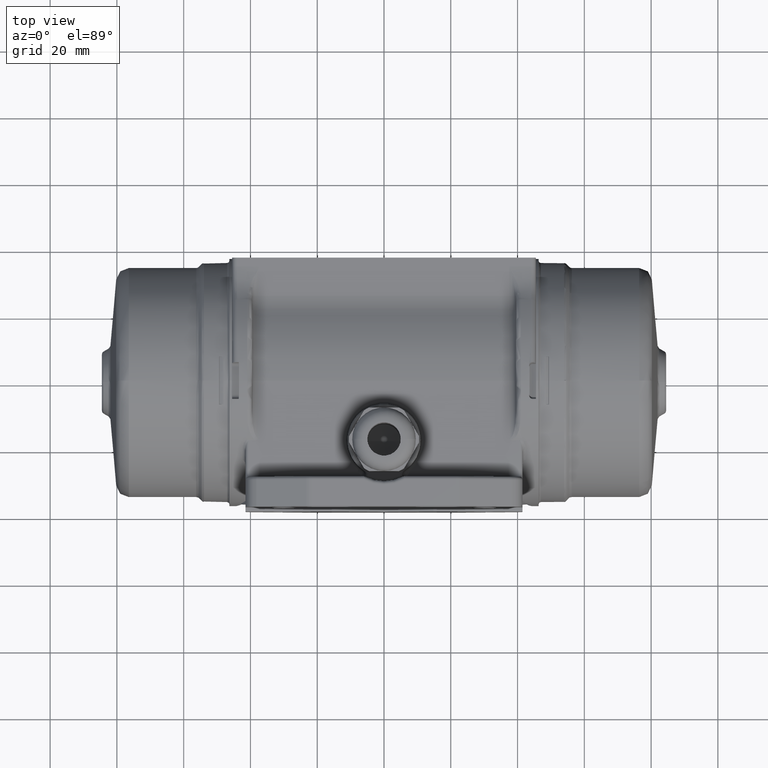
[diagram: clean part render]
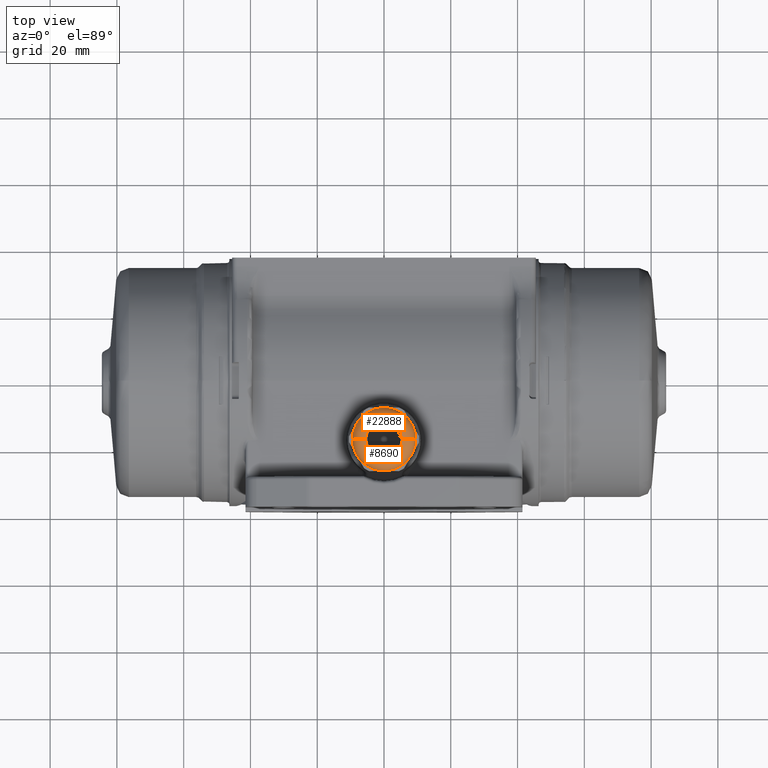
[diagram: same view with one multi-face feature highlighted, each face labeled with its STEP entity id]
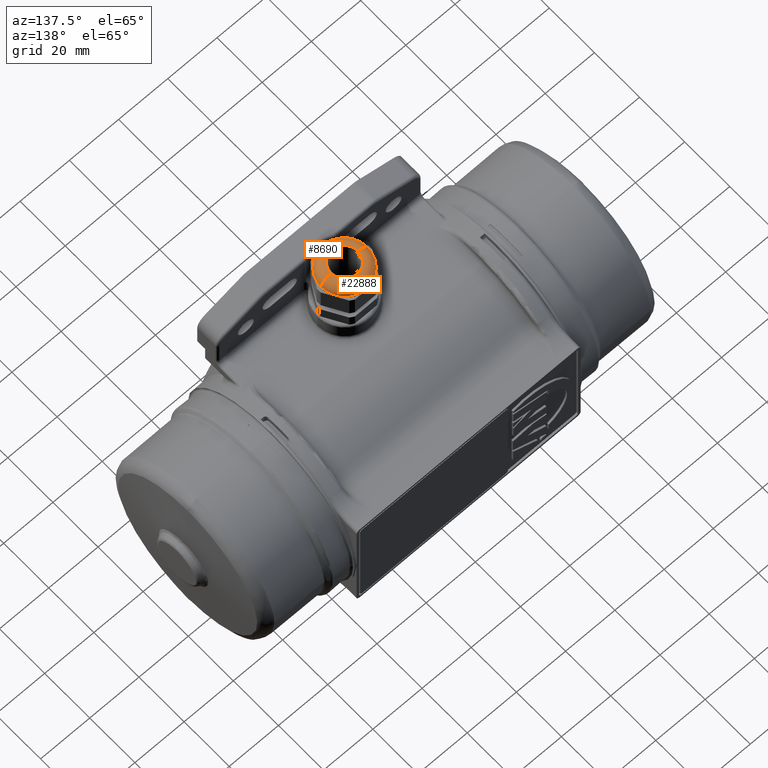
[diagram: same view with one multi-face feature highlighted, each face labeled with its STEP entity id]
A machine part, top view. The highlighted faces form ONE feature: a constant-radius fillet chain: 2 tangent blend faces with common blend radius 4 mm. The faces share edges in the B-rep.
A second angle (auxiliary view) of the same feature is appended — it is thin or edge-on in the first view.
Their STEP definitions:
[1] entity #8690 (Torus):
#4844 = DIRECTION ( 'NONE',  ( 0.0000000000000000000, -1.000000000000000000, 0.0000000000000000000 ) ) ;
#4845 = CARTESIAN_POINT ( 'NONE',  ( 5.500000000000000000, -18.00000000000000000, 58.50000000000000000 ) ) ;
#4855 = CIRCLE ( 'NONE', #4864, 3.999999999999996400 ) ;
#4856 = CIRCLE ( 'NONE', #4876, 4.000000000000000000 ) ;
#4864 = AXIS2_PLACEMENT_3D ( 'NONE', #4845, #4844, #4895 ) ;
#4873 = CARTESIAN_POINT ( 'NONE',  ( -5.500000000000000000, -18.00000000000000000, 58.50000000000000000 ) ) ;
#4876 = AXIS2_PLACEMENT_3D ( 'NONE', #4873, #4881, #4921 ) ;
#4881 = DIRECTION ( 'NONE',  ( 1.224646799147353200E-016, 1.000000000000000000, -0.0000000000000000000 ) ) ;
#4895 = DIRECTION ( 'NONE',  ( 0.0000000000000000000, 0.0000000000000000000, -1.000000000000000000 ) ) ;
#4909 = CARTESIAN_POINT ( 'NONE',  ( -5.500000000000000000, -18.00000000000000000, 62.50000000000000000 ) ) ;
#4921 = DIRECTION ( 'NONE',  ( -1.000000000000000000, 0.0000000000000000000, 0.0000000000000000000 ) ) ;
#4922 = CARTESIAN_POINT ( 'NONE',  ( -9.500000000000000000, -18.00000000000000000, 58.50000000000000000 ) ) ;
#4923 = CARTESIAN_POINT ( 'NONE',  ( 9.500000000000000000, -18.00000000000000000, 58.50000000000000000 ) ) ;
#4924 = CARTESIAN_POINT ( 'NONE',  ( 5.500000000000000000, -18.00000000000000000, 62.50000000000000000 ) ) ;
#8690 = ADVANCED_FACE ( 'NONE', ( #23480 ), #23415, .T. ) ;
#8691 = ORIENTED_EDGE ( 'NONE', *, *, #22894, .T. ) ;
#8693 = ORIENTED_EDGE ( 'NONE', *, *, #8759, .F. ) ;
#8695 = EDGE_CURVE ( 'NONE', #22911, #22906, #23558, .T. ) ;
#8700 = ORIENTED_EDGE ( 'NONE', *, *, #8695, .F. ) ;
#8712 = EDGE_LOOP ( 'NONE', ( #8760, #8700, #8691, #8693 ) ) ;
#8759 = EDGE_CURVE ( 'NONE', #22914, #22900, #24038, .T. ) ;
#8760 = ORIENTED_EDGE ( 'NONE', *, *, #22899, .F. ) ;
#22894 = EDGE_CURVE ( 'NONE', #22911, #22900, #4855, .T. ) ;
#22899 = EDGE_CURVE ( 'NONE', #22906, #22914, #4856, .T. ) ;
#22900 = VERTEX_POINT ( 'NONE', #4924 ) ;
#22906 = VERTEX_POINT ( 'NONE', #4922 ) ;
#22911 = VERTEX_POINT ( 'NONE', #4923 ) ;
#22914 = VERTEX_POINT ( 'NONE', #4909 ) ;
#23409 = CARTESIAN_POINT ( 'NONE',  ( 0.0000000000000000000, -18.00000000000000000, 58.50000000000000000 ) ) ;
#23415 = TOROIDAL_SURFACE ( 'NONE', #23429, 5.500000000000000000, 4.000000000000000000 ) ;
#23429 = AXIS2_PLACEMENT_3D ( 'NONE', #23409, #23442, #23441 ) ;
#23441 = DIRECTION ( 'NONE',  ( 1.000000000000000000, 0.0000000000000000000, 0.0000000000000000000 ) ) ;
#23442 = DIRECTION ( 'NONE',  ( 0.0000000000000000000, 0.0000000000000000000, 1.000000000000000000 ) ) ;
#23480 = FACE_OUTER_BOUND ( 'NONE', #8712, .T. ) ;
#23496 = DIRECTION ( 'NONE',  ( -0.0000000000000000000, -0.0000000000000000000, -1.000000000000000000 ) ) ;
#23498 = CARTESIAN_POINT ( 'NONE',  ( 0.0000000000000000000, -18.00000000000000000, 58.50000000000000000 ) ) ;
#23500 = AXIS2_PLACEMENT_3D ( 'NONE', #23498, #23496, #23621 ) ;
#23558 = CIRCLE ( 'NONE', #23500, 9.500000000000000000 ) ;
#23621 = DIRECTION ( 'NONE',  ( 1.000000000000000000, 0.0000000000000000000, 0.0000000000000000000 ) ) ;
#23977 = AXIS2_PLACEMENT_3D ( 'NONE', #24019, #24018, #24016 ) ;
#24016 = DIRECTION ( 'NONE',  ( 1.000000000000000000, 0.0000000000000000000, 0.0000000000000000000 ) ) ;
#24018 = DIRECTION ( 'NONE',  ( 0.0000000000000000000, 0.0000000000000000000, 1.000000000000000000 ) ) ;
#24019 = CARTESIAN_POINT ( 'NONE',  ( 0.0000000000000000000, -18.00000000000000000, 62.50000000000000000 ) ) ;
#24038 = CIRCLE ( 'NONE', #23977, 5.500000000000000000 ) ;
[2] entity #22888 (Torus):
#4831 = FACE_OUTER_BOUND ( 'NONE', #22784, .T. ) ;
#4844 = DIRECTION ( 'NONE',  ( 0.0000000000000000000, -1.000000000000000000, 0.0000000000000000000 ) ) ;
#4845 = CARTESIAN_POINT ( 'NONE',  ( 5.500000000000000000, -18.00000000000000000, 58.50000000000000000 ) ) ;
#4855 = CIRCLE ( 'NONE', #4864, 3.999999999999996400 ) ;
#4856 = CIRCLE ( 'NONE', #4876, 4.000000000000000000 ) ;
#4858 = DIRECTION ( 'NONE',  ( 1.000000000000000000, 0.0000000000000000000, 0.0000000000000000000 ) ) ;
#4859 = DIRECTION ( 'NONE',  ( 0.0000000000000000000, 0.0000000000000000000, 1.000000000000000000 ) ) ;
#4860 = CARTESIAN_POINT ( 'NONE',  ( 0.0000000000000000000, -18.00000000000000000, 58.50000000000000000 ) ) ;
#4864 = AXIS2_PLACEMENT_3D ( 'NONE', #4845, #4844, #4895 ) ;
#4865 = TOROIDAL_SURFACE ( 'NONE', #4866, 5.500000000000000000, 4.000000000000000000 ) ;
#4866 = AXIS2_PLACEMENT_3D ( 'NONE', #4860, #4859, #4858 ) ;
#4870 = CIRCLE ( 'NONE', #4911, 5.500000000000000000 ) ;
#4873 = CARTESIAN_POINT ( 'NONE',  ( -5.500000000000000000, -18.00000000000000000, 58.50000000000000000 ) ) ;
#4875 = CARTESIAN_POINT ( 'NONE',  ( 0.0000000000000000000, -18.00000000000000000, 62.50000000000000000 ) ) ;
#4876 = AXIS2_PLACEMENT_3D ( 'NONE', #4873, #4881, #4921 ) ;
#4881 = DIRECTION ( 'NONE',  ( 1.224646799147353200E-016, 1.000000000000000000, -0.0000000000000000000 ) ) ;
#4895 = DIRECTION ( 'NONE',  ( 0.0000000000000000000, 0.0000000000000000000, -1.000000000000000000 ) ) ;
#4897 = CARTESIAN_POINT ( 'NONE',  ( 0.0000000000000000000, -18.00000000000000000, 58.50000000000000000 ) ) ;
#4909 = CARTESIAN_POINT ( 'NONE',  ( -5.500000000000000000, -18.00000000000000000, 62.50000000000000000 ) ) ;
#4910 = DIRECTION ( 'NONE',  ( 1.000000000000000000, 0.0000000000000000000, 0.0000000000000000000 ) ) ;
#4911 = AXIS2_PLACEMENT_3D ( 'NONE', #4875, #4925, #4910 ) ;
#4921 = DIRECTION ( 'NONE',  ( -1.000000000000000000, 0.0000000000000000000, 0.0000000000000000000 ) ) ;
#4922 = CARTESIAN_POINT ( 'NONE',  ( -9.500000000000000000, -18.00000000000000000, 58.50000000000000000 ) ) ;
#4923 = CARTESIAN_POINT ( 'NONE',  ( 9.500000000000000000, -18.00000000000000000, 58.50000000000000000 ) ) ;
#4924 = CARTESIAN_POINT ( 'NONE',  ( 5.500000000000000000, -18.00000000000000000, 62.50000000000000000 ) ) ;
#4925 = DIRECTION ( 'NONE',  ( 0.0000000000000000000, 0.0000000000000000000, 1.000000000000000000 ) ) ;
#4950 = DIRECTION ( 'NONE',  ( 1.000000000000000000, 0.0000000000000000000, 0.0000000000000000000 ) ) ;
#4951 = DIRECTION ( 'NONE',  ( -0.0000000000000000000, -0.0000000000000000000, -1.000000000000000000 ) ) ;
#4952 = AXIS2_PLACEMENT_3D ( 'NONE', #4897, #4951, #4950 ) ;
#4953 = CIRCLE ( 'NONE', #4952, 9.500000000000000000 ) ;
#7577 = ORIENTED_EDGE ( 'NONE', *, *, #22921, .F. ) ;
#22784 = EDGE_LOOP ( 'NONE', ( #7577, #22909, #22904, #22905 ) ) ;
#22888 = ADVANCED_FACE ( 'NONE', ( #4831 ), #4865, .T. ) ;
#22894 = EDGE_CURVE ( 'NONE', #22911, #22900, #4855, .T. ) ;
#22899 = EDGE_CURVE ( 'NONE', #22906, #22914, #4856, .T. ) ;
#22900 = VERTEX_POINT ( 'NONE', #4924 ) ;
#22904 = ORIENTED_EDGE ( 'NONE', *, *, #22912, .F. ) ;
#22905 = ORIENTED_EDGE ( 'NONE', *, *, #22894, .F. ) ;
#22906 = VERTEX_POINT ( 'NONE', #4922 ) ;
#22909 = ORIENTED_EDGE ( 'NONE', *, *, #22899, .T. ) ;
#22911 = VERTEX_POINT ( 'NONE', #4923 ) ;
#22912 = EDGE_CURVE ( 'NONE', #22900, #22914, #4870, .T. ) ;
#22914 = VERTEX_POINT ( 'NONE', #4909 ) ;
#22921 = EDGE_CURVE ( 'NONE', #22906, #22911, #4953, .T. ) ;